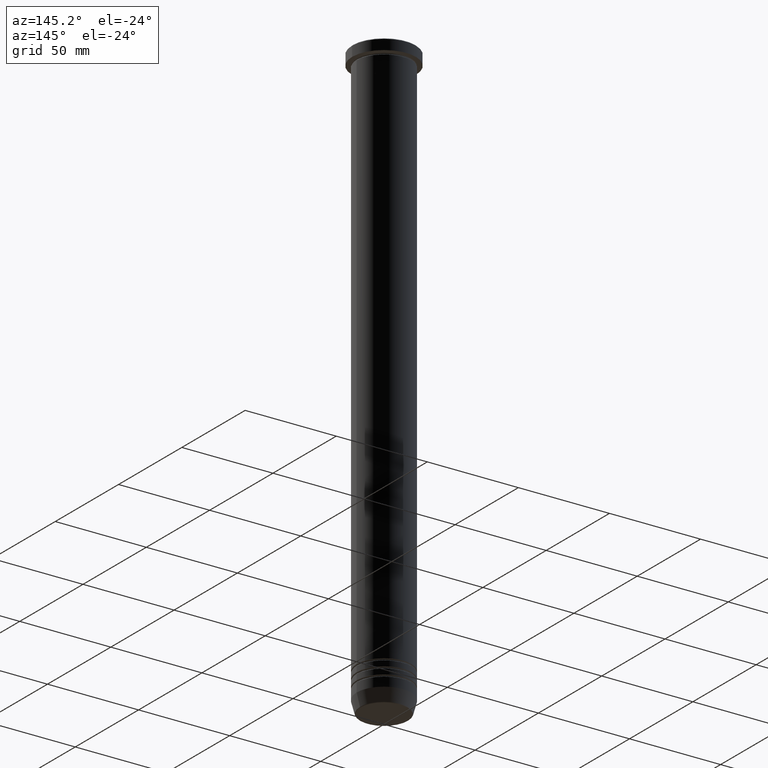
[diagram: clean part render]
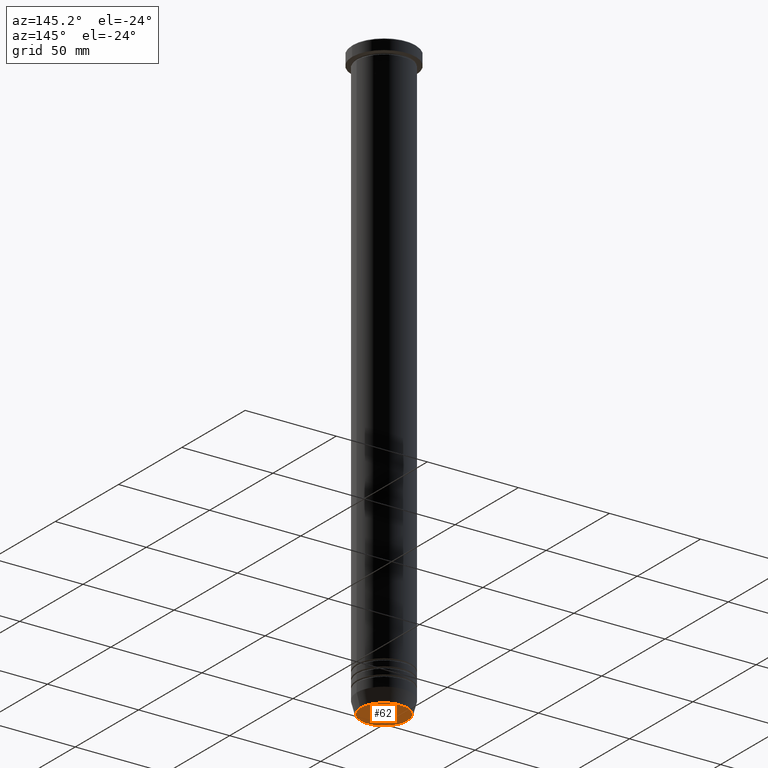
[diagram: same view with one face highlighted and labeled with its STEP entity id]
A machine part, auxiliary view. The second image highlights one B-rep face of the part: STEP entity #62.
In plain terms, the highlighted planar face has unit normal (0, -0, 1).
Its self-contained STEP definition (entity closure, byte-faithful):
#62 = ADVANCED_FACE ( 'NONE', ( #489 ), #385, .F. ) ;
#96 = EDGE_CURVE ( 'NONE', #785, #323, #798, .T. ) ;
#146 = ORIENTED_EDGE ( 'NONE', *, *, #96, .T. ) ;
#186 = EDGE_CURVE ( 'NONE', #323, #785, #955, .T. ) ;
#207 = DIRECTION ( 'NONE',  ( 0.000000000000000000, -0.000000000000000000, 1.000000000000000000 ) ) ;
#323 = VERTEX_POINT ( 'NONE', #1022 ) ;
#385 = PLANE ( 'NONE',  #943 ) ;
#489 = FACE_OUTER_BOUND ( 'NONE', #566, .T. ) ;
#519 = DIRECTION ( 'NONE',  ( 1.000000000000000000, 0.000000000000000000, 0.000000000000000000 ) ) ;
#528 = CARTESIAN_POINT ( 'NONE',  ( 0.000000000000000000, 0.000000000000000000, -326.0000000000000000 ) ) ;
#566 = EDGE_LOOP ( 'NONE', ( #915, #146 ) ) ;
#567 = DIRECTION ( 'NONE',  ( 1.000000000000000000, 0.000000000000000000, 0.000000000000000000 ) ) ;
#641 = CARTESIAN_POINT ( 'NONE',  ( 0.000000000000000000, 3.263683719727696747E-14, -326.0000000000000000 ) ) ;
#708 = AXIS2_PLACEMENT_3D ( 'NONE', #528, #887, #519 ) ;
#733 = DIRECTION ( 'NONE',  ( 0.000000000000000000, 0.000000000000000000, -1.000000000000000000 ) ) ;
#785 = VERTEX_POINT ( 'NONE', #1090 ) ;
#798 = CIRCLE ( 'NONE', #1005, 12.74069215899264584 ) ;
#887 = DIRECTION ( 'NONE',  ( 0.000000000000000000, 0.000000000000000000, -1.000000000000000000 ) ) ;
#915 = ORIENTED_EDGE ( 'NONE', *, *, #186, .T. ) ;
#943 = AXIS2_PLACEMENT_3D ( 'NONE', #641, #207, #567 ) ;
#955 = CIRCLE ( 'NONE', #708, 12.74069215899264584 ) ;
#996 = CARTESIAN_POINT ( 'NONE',  ( 0.000000000000000000, 0.000000000000000000, -326.0000000000000000 ) ) ;
#1005 = AXIS2_PLACEMENT_3D ( 'NONE', #996, #733, #1092 ) ;
#1022 = CARTESIAN_POINT ( 'NONE',  ( 12.74069215899264584, 0.000000000000000000, -326.0000000000000000 ) ) ;
#1090 = CARTESIAN_POINT ( 'NONE',  ( -12.74069215899264584, 1.589857736427679260E-15, -326.0000000000000000 ) ) ;
#1092 = DIRECTION ( 'NONE',  ( 1.000000000000000000, 0.000000000000000000, 0.000000000000000000 ) ) ;